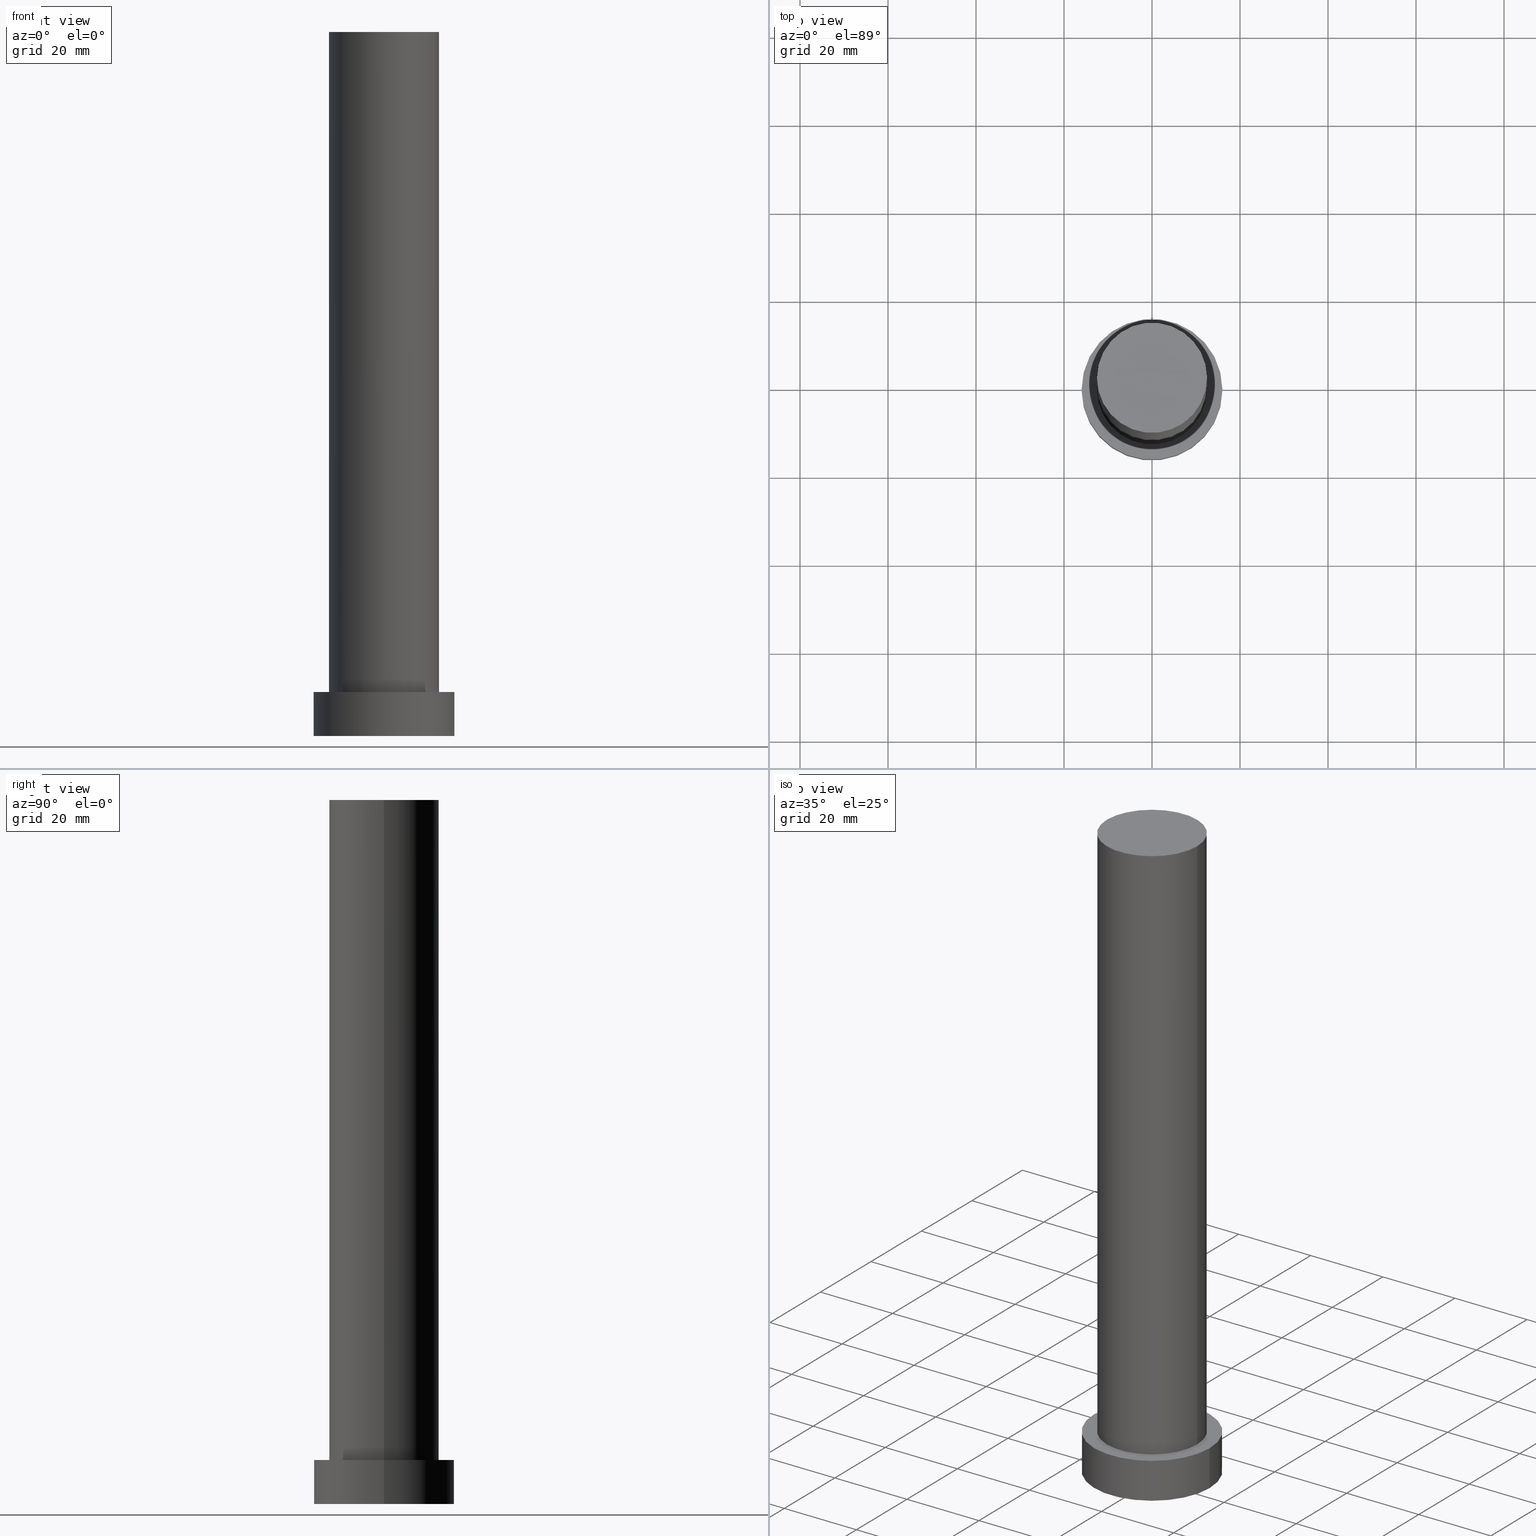
[diagram: canonical four-view strip — front | top / right | iso, engineering-drawing reading convention]
A machine part, canonical four-view strip (front | top / right | iso — engineering-drawing reading convention). The complete STEP part file that produces these views, byte-faithful:
ISO-10303-21;
HEADER;
FILE_DESCRIPTION (( 'STEP AP203' ),
    '1' );
FILE_NAME ('8864.STEP',
    '2023-02-13T07:48:14',
    ( '' ),
    ( '' ),
    'SwSTEP 2.0',
    'SolidWorks 2019',
    '' );
FILE_SCHEMA (( 'CONFIG_CONTROL_DESIGN' ));
ENDSEC;

DATA;
#1 = ADVANCED_FACE ( 'NONE', ( #175 ), #219, .T. ) ;
#2 = CALENDAR_DATE ( 2023, 13, 2 ) ;
#3 = CARTESIAN_POINT ( 'NONE',  ( -16.00000000000000000, 0.000000000000000000, 10.00000000000000000 ) ) ;
#4 = DATE_AND_TIME ( #131, #166 ) ;
#5 = DIRECTION ( 'NONE',  ( 1.000000000000000000, 0.000000000000000000, 0.000000000000000000 ) ) ;
#6 = DATE_TIME_ROLE ( 'creation_date' ) ;
#7 = SHAPE_DEFINITION_REPRESENTATION ( #210, #177 ) ;
#8 = CARTESIAN_POINT ( 'NONE',  ( -12.50000000000000000, 0.000000000000000000, 10.00000000000000000 ) ) ;
#9 = APPLICATION_PROTOCOL_DEFINITION ( 'international standard', 'config_control_design', 1994, #136 ) ;
#10 = EDGE_CURVE ( 'NONE', #165, #107, #78, .T. ) ;
#11 = LOCAL_TIME ( 8, 48, 14.00000000000000000, #50 ) ;
#12 = DIRECTION ( 'NONE',  ( -0.000000000000000000, -0.000000000000000000, -1.000000000000000000 ) ) ;
#13 = EDGE_LOOP ( 'NONE', ( #60, #142 ) ) ;
#14 = DIRECTION ( 'NONE',  ( 1.000000000000000000, 0.000000000000000000, -0.000000000000000000 ) ) ;
#15 = ORIENTED_EDGE ( 'NONE', *, *, #10, .F. ) ;
#16 = DIRECTION ( 'NONE',  ( 1.000000000000000000, 0.000000000000000000, 0.000000000000000000 ) ) ;
#17 = AXIS2_PLACEMENT_3D ( 'NONE', #120, #196, #79 ) ;
#18 = CIRCLE ( 'NONE', #55, 16.00000000000000000 ) ;
#19 =( NAMED_UNIT ( * ) SI_UNIT ( $, .STERADIAN. ) SOLID_ANGLE_UNIT ( ) );
#20 = ORIENTED_EDGE ( 'NONE', *, *, #250, .F. ) ;
#21 = APPROVAL_ROLE ( '' ) ;
#22 = LINE ( 'NONE', #64, #187 ) ;
#23 = EDGE_LOOP ( 'NONE', ( #99, #20, #197, #85 ) ) ;
#24 = APPROVAL_STATUS ( 'not_yet_approved' ) ;
#25 = EDGE_CURVE ( 'NONE', #170, #151, #18, .T. ) ;
#26 = DIRECTION ( 'NONE',  ( 1.000000000000000000, 0.000000000000000000, 0.000000000000000000 ) ) ;
#27 = DATE_TIME_ROLE ( 'classification_date' ) ;
#28 = EDGE_CURVE ( 'NONE', #81, #57, #235, .T. ) ;
#29 = CARTESIAN_POINT ( 'NONE',  ( 0.000000000000000000, 0.000000000000000000, 0.000000000000000000 ) ) ;
#30 = AXIS2_PLACEMENT_3D ( 'NONE', #217, #62, #126 ) ;
#31 = LINE ( 'NONE', #114, #61 ) ;
#32 = PERSON_AND_ORGANIZATION_ROLE ( 'design_owner' ) ;
#33 = ORIENTED_EDGE ( 'NONE', *, *, #25, .F. ) ;
#34 = CYLINDRICAL_SURFACE ( 'NONE', #115, 16.00000000000000000 ) ;
#35 = DIRECTION ( 'NONE',  ( -0.000000000000000000, -0.000000000000000000, -1.000000000000000000 ) ) ;
#36 = CARTESIAN_POINT ( 'NONE',  ( 0.000000000000000000, 0.000000000000000000, 160.0000000000000000 ) ) ;
#37 = CIRCLE ( 'NONE', #238, 16.00000000000000000 ) ;
#38 = ORIENTED_EDGE ( 'NONE', *, *, #109, .T. ) ;
#39 = DIRECTION ( 'NONE',  ( 1.000000000000000000, 0.000000000000000000, 0.000000000000000000 ) ) ;
#40 = DIRECTION ( 'NONE',  ( 0.000000000000000000, 0.000000000000000000, 1.000000000000000000 ) ) ;
#41 = ORIENTED_EDGE ( 'NONE', *, *, #207, .F. ) ;
#42 =( LENGTH_UNIT ( ) NAMED_UNIT ( * ) SI_UNIT ( .MILLI., .METRE. ) );
#43 = APPROVAL_DATE_TIME ( #173, #174 ) ;
#44 = EDGE_LOOP ( 'NONE', ( #33, #63, #76, #125 ) ) ;
#45 = PERSON_AND_ORGANIZATION_ROLE ( 'creator' ) ;
#46 = PRODUCT_DEFINITION_FORMATION_WITH_SPECIFIED_SOURCE ( 'LIBOVOLN�', '', #249, .NOT_KNOWN. ) ;
#47 = PERSON_AND_ORGANIZATION ( #195, #176 ) ;
#48 = PERSON_AND_ORGANIZATION ( #195, #176 ) ;
#49 = APPROVAL_STATUS ( 'not_yet_approved' ) ;
#50 = COORDINATED_UNIVERSAL_TIME_OFFSET ( 1, 0, .AHEAD. ) ;
#51 = APPROVAL_PERSON_ORGANIZATION ( #158, #149, #157 ) ;
#52 = PERSON_AND_ORGANIZATION ( #195, #176 ) ;
#53 = AXIS2_PLACEMENT_3D ( 'NONE', #36, #121, #14 ) ;
#54 = ORIENTED_EDGE ( 'NONE', *, *, #206, .F. ) ;
#55 = AXIS2_PLACEMENT_3D ( 'NONE', #71, #87, #155 ) ;
#56 = DIRECTION ( 'NONE',  ( 1.000000000000000000, 0.000000000000000000, 0.000000000000000000 ) ) ;
#57 = VERTEX_POINT ( 'NONE', #110 ) ;
#58 = DIRECTION ( 'NONE',  ( 1.000000000000000000, 0.000000000000000000, -0.000000000000000000 ) ) ;
#59 = DIRECTION ( 'NONE',  ( 0.000000000000000000, 0.000000000000000000, 1.000000000000000000 ) ) ;
#60 = ORIENTED_EDGE ( 'NONE', *, *, #247, .T. ) ;
#61 = VECTOR ( 'NONE', #191, 1000.000000000000000 ) ;
#62 = DIRECTION ( 'NONE',  ( 0.000000000000000000, 0.000000000000000000, 1.000000000000000000 ) ) ;
#63 = ORIENTED_EDGE ( 'NONE', *, *, #206, .T. ) ;
#64 = CARTESIAN_POINT ( 'NONE',  ( 12.50000000000000000, 1.530808498934191521E-15, 160.0000000000000000 ) ) ;
#65 = EDGE_LOOP ( 'NONE', ( #41, #251, #38, #184 ) ) ;
#66 = PLANE ( 'NONE',  #30 ) ;
#67 = CARTESIAN_POINT ( 'NONE',  ( 0.000000000000000000, 0.000000000000000000, 10.00000000000000000 ) ) ;
#68 = CARTESIAN_POINT ( 'NONE',  ( 0.000000000000000000, 0.000000000000000000, 160.0000000000000000 ) ) ;
#69 = DIRECTION ( 'NONE',  ( -1.000000000000000000, 0.000000000000000000, 0.000000000000000000 ) ) ;
#70 = COORDINATED_UNIVERSAL_TIME_OFFSET ( 1, 0, .AHEAD. ) ;
#71 = CARTESIAN_POINT ( 'NONE',  ( 0.000000000000000000, 0.000000000000000000, 10.00000000000000000 ) ) ;
#72 = APPROVAL_PERSON_ORGANIZATION ( #106, #74, #111 ) ;
#73 =( GEOMETRIC_REPRESENTATION_CONTEXT ( 3 ) GLOBAL_UNCERTAINTY_ASSIGNED_CONTEXT ( ( #108 ) ) GLOBAL_UNIT_ASSIGNED_CONTEXT ( ( #42, #104, #19 ) ) REPRESENTATION_CONTEXT ( 'NONE', 'WORKASPACE' ) );
#74 = APPROVAL ( #24, 'NEUR�EN�' ) ;
#75 = LINE ( 'NONE', #180, #135 ) ;
#76 = ORIENTED_EDGE ( 'NONE', *, *, #10, .T. ) ;
#77 = CARTESIAN_POINT ( 'NONE',  ( 0.000000000000000000, 0.000000000000000000, 10.00000000000000000 ) ) ;
#78 = CIRCLE ( 'NONE', #138, 16.00000000000000000 ) ;
#79 = DIRECTION ( 'NONE',  ( 1.000000000000000000, 0.000000000000000000, 0.000000000000000000 ) ) ;
#80 = ORIENTED_EDGE ( 'NONE', *, *, #207, .T. ) ;
#81 = VERTEX_POINT ( 'NONE', #8 ) ;
#82 = CYLINDRICAL_SURFACE ( 'NONE', #221, 12.50000000000000000 ) ;
#83 = APPROVAL_PERSON_ORGANIZATION ( #220, #174, #21 ) ;
#84 = FACE_OUTER_BOUND ( 'NONE', #44, .T. ) ;
#85 = ORIENTED_EDGE ( 'NONE', *, *, #28, .T. ) ;
#86 = VECTOR ( 'NONE', #35, 1000.000000000000000 ) ;
#87 = DIRECTION ( 'NONE',  ( 0.000000000000000000, 0.000000000000000000, 1.000000000000000000 ) ) ;
#88 = SECURITY_CLASSIFICATION ( '', '', #226 ) ;
#89 = ADVANCED_FACE ( 'NONE', ( #93 ), #34, .T. ) ;
#90 = AXIS2_PLACEMENT_3D ( 'NONE', #77, #98, #58 ) ;
#91 = PRODUCT_RELATED_PRODUCT_CATEGORY ( 'detail', '', ( #249 ) ) ;
#92 = AXIS2_PLACEMENT_3D ( 'NONE', #68, #200, #130 ) ;
#93 = FACE_OUTER_BOUND ( 'NONE', #239, .T. ) ;
#94 = CC_DESIGN_DATE_AND_TIME_ASSIGNMENT ( #4, #6, ( #233 ) ) ;
#95 = CC_DESIGN_PERSON_AND_ORGANIZATION_ASSIGNMENT ( #47, #205, ( #46 ) ) ;
#96 = CARTESIAN_POINT ( 'NONE',  ( 0.000000000000000000, 0.000000000000000000, 160.0000000000000000 ) ) ;
#97 = EDGE_CURVE ( 'NONE', #214, #81, #75, .T. ) ;
#98 = DIRECTION ( 'NONE',  ( 0.000000000000000000, 0.000000000000000000, 1.000000000000000000 ) ) ;
#99 = ORIENTED_EDGE ( 'NONE', *, *, #185, .F. ) ;
#100 = CARTESIAN_POINT ( 'NONE',  ( -16.00000000000000000, 0.000000000000000000, 0.000000000000000000 ) ) ;
#101 = LINE ( 'NONE', #254, #86 ) ;
#102 = ORIENTED_EDGE ( 'NONE', *, *, #159, .T. ) ;
#103 = CARTESIAN_POINT ( 'NONE',  ( 16.00000000000000000, 1.959434878635765131E-15, 10.00000000000000000 ) ) ;
#104 =( NAMED_UNIT ( * ) PLANE_ANGLE_UNIT ( ) SI_UNIT ( $, .RADIAN. ) );
#105 = APPLICATION_PROTOCOL_DEFINITION ( 'international standard', 'config_control_design', 1994, #227 ) ;
#106 = PERSON_AND_ORGANIZATION ( #195, #176 ) ;
#107 = VERTEX_POINT ( 'NONE', #100 ) ;
#108 = UNCERTAINTY_MEASURE_WITH_UNIT (LENGTH_MEASURE( 1.000000000000000082E-05 ), #42, 'distance_accuracy_value', 'NONE');
#109 = EDGE_CURVE ( 'NONE', #57, #81, #211, .T. ) ;
#110 = CARTESIAN_POINT ( 'NONE',  ( 12.50000000000000000, 1.530808498934191521E-15, 10.00000000000000000 ) ) ;
#111 = APPROVAL_ROLE ( '' ) ;
#112 = CC_DESIGN_DATE_AND_TIME_ASSIGNMENT ( #245, #27, ( #88 ) ) ;
#113 = CC_DESIGN_APPROVAL ( #174, ( #46 ) ) ;
#114 = CARTESIAN_POINT ( 'NONE',  ( 16.00000000000000000, 1.959434878635765131E-15, 10.00000000000000000 ) ) ;
#115 = AXIS2_PLACEMENT_3D ( 'NONE', #141, #12, #234 ) ;
#116 = DIRECTION ( 'NONE',  ( -0.000000000000000000, -0.000000000000000000, -1.000000000000000000 ) ) ;
#117 = CIRCLE ( 'NONE', #188, 12.50000000000000000 ) ;
#118 = FACE_BOUND ( 'NONE', #223, .T. ) ;
#119 = CARTESIAN_POINT ( 'NONE',  ( -12.50000000000000000, 0.000000000000000000, 160.0000000000000000 ) ) ;
#120 = CARTESIAN_POINT ( 'NONE',  ( 0.000000000000000000, 0.000000000000000000, 0.000000000000000000 ) ) ;
#121 = DIRECTION ( 'NONE',  ( 0.000000000000000000, 0.000000000000000000, 1.000000000000000000 ) ) ;
#122 = VERTEX_POINT ( 'NONE', #129 ) ;
#123 = CC_DESIGN_PERSON_AND_ORGANIZATION_ASSIGNMENT ( #199, #156, ( #46 ) ) ;
#124 = CC_DESIGN_PERSON_AND_ORGANIZATION_ASSIGNMENT ( #133, #203, ( #88 ) ) ;
#125 = ORIENTED_EDGE ( 'NONE', *, *, #139, .F. ) ;
#126 = DIRECTION ( 'NONE',  ( 1.000000000000000000, 0.000000000000000000, -0.000000000000000000 ) ) ;
#127 = CIRCLE ( 'NONE', #17, 16.00000000000000000 ) ;
#128 = COORDINATED_UNIVERSAL_TIME_OFFSET ( 1, 0, .AHEAD. ) ;
#129 = CARTESIAN_POINT ( 'NONE',  ( 12.50000000000000000, 1.530808498934191521E-15, 160.0000000000000000 ) ) ;
#130 = DIRECTION ( 'NONE',  ( -1.000000000000000000, 0.000000000000000000, 0.000000000000000000 ) ) ;
#131 = CALENDAR_DATE ( 2023, 13, 2 ) ;
#132 = DIRECTION ( 'NONE',  ( -0.000000000000000000, -0.000000000000000000, -1.000000000000000000 ) ) ;
#133 = PERSON_AND_ORGANIZATION ( #195, #176 ) ;
#134 = AXIS2_PLACEMENT_3D ( 'NONE', #29, #228, #178 ) ;
#135 = VECTOR ( 'NONE', #160, 1000.000000000000000 ) ;
#136 = APPLICATION_CONTEXT ( 'configuration controlled 3d designs of mechanical parts and assemblies' ) ;
#137 = MECHANICAL_CONTEXT ( 'NONE', #227, 'mechanical' ) ;
#138 = AXIS2_PLACEMENT_3D ( 'NONE', #186, #246, #5 ) ;
#139 = EDGE_CURVE ( 'NONE', #151, #107, #101, .T. ) ;
#140 = AXIS2_PLACEMENT_3D ( 'NONE', #232, #59, #56 ) ;
#141 = CARTESIAN_POINT ( 'NONE',  ( 0.000000000000000000, 0.000000000000000000, 10.00000000000000000 ) ) ;
#142 = ORIENTED_EDGE ( 'NONE', *, *, #25, .T. ) ;
#143 = FACE_OUTER_BOUND ( 'NONE', #241, .T. ) ;
#144 = CC_DESIGN_PERSON_AND_ORGANIZATION_ASSIGNMENT ( #52, #45, ( #233 ) ) ;
#145 = CC_DESIGN_APPROVAL ( #149, ( #233 ) ) ;
#146 = ORIENTED_EDGE ( 'NONE', *, *, #159, .F. ) ;
#147 = CARTESIAN_POINT ( 'NONE',  ( 0.000000000000000000, 0.000000000000000000, 160.0000000000000000 ) ) ;
#148 = DIRECTION ( 'NONE',  ( -0.000000000000000000, -0.000000000000000000, -1.000000000000000000 ) ) ;
#149 = APPROVAL ( #208, 'NEUR�EN�' ) ;
#150 = CC_DESIGN_SECURITY_CLASSIFICATION ( #88, ( #46 ) ) ;
#151 = VERTEX_POINT ( 'NONE', #3 ) ;
#152 = CALENDAR_DATE ( 2023, 13, 2 ) ;
#153 = CLOSED_SHELL ( 'NONE', ( #1, #179, #89, #216, #218, #252, #167 ) ) ;
#154 = CALENDAR_DATE ( 2023, 13, 2 ) ;
#155 = DIRECTION ( 'NONE',  ( 1.000000000000000000, 0.000000000000000000, 0.000000000000000000 ) ) ;
#156 = PERSON_AND_ORGANIZATION_ROLE ( 'creator' ) ;
#157 = APPROVAL_ROLE ( '' ) ;
#158 = PERSON_AND_ORGANIZATION ( #195, #176 ) ;
#159 = EDGE_CURVE ( 'NONE', #107, #165, #127, .T. ) ;
#160 = DIRECTION ( 'NONE',  ( -0.000000000000000000, -0.000000000000000000, -1.000000000000000000 ) ) ;
#161 = ORIENTED_EDGE ( 'NONE', *, *, #250, .T. ) ;
#162 = LOCAL_TIME ( 8, 48, 14.00000000000000000, #225 ) ;
#163 = AXIS2_PLACEMENT_3D ( 'NONE', #171, #224, #26 ) ;
#164 = CARTESIAN_POINT ( 'NONE',  ( 16.00000000000000000, 1.959434878635765131E-15, 0.000000000000000000 ) ) ;
#165 = VERTEX_POINT ( 'NONE', #164 ) ;
#166 = LOCAL_TIME ( 8, 48, 14.00000000000000000, #70 ) ;
#167 = ADVANCED_FACE ( 'NONE', ( #143 ), #213, .T. ) ;
#168 = ORIENTED_EDGE ( 'NONE', *, *, #28, .F. ) ;
#169 = CYLINDRICAL_SURFACE ( 'NONE', #198, 16.00000000000000000 ) ;
#170 = VERTEX_POINT ( 'NONE', #103 ) ;
#171 = CARTESIAN_POINT ( 'NONE',  ( 0.000000000000000000, 0.000000000000000000, 10.00000000000000000 ) ) ;
#172 = FACE_OUTER_BOUND ( 'NONE', #23, .T. ) ;
#173 = DATE_AND_TIME ( #154, #162 ) ;
#174 = APPROVAL ( #49, 'NEUR�EN�' ) ;
#175 = FACE_OUTER_BOUND ( 'NONE', #65, .T. ) ;
#176 = ORGANIZATION ( 'NEUR�EN�', 'NEUR�EN�', '' ) ;
#177 = ADVANCED_BREP_SHAPE_REPRESENTATION ( '8864', ( #190, #134 ), #73 ) ;
#178 = DIRECTION ( 'NONE',  ( 1.000000000000000000, 0.000000000000000000, 0.000000000000000000 ) ) ;
#179 = ADVANCED_FACE ( 'NONE', ( #84 ), #169, .T. ) ;
#180 = CARTESIAN_POINT ( 'NONE',  ( -12.50000000000000000, 0.000000000000000000, 160.0000000000000000 ) ) ;
#181 = CARTESIAN_POINT ( 'NONE',  ( 0.000000000000000000, 0.000000000000000000, 10.00000000000000000 ) ) ;
#182 = CIRCLE ( 'NONE', #204, 12.50000000000000000 ) ;
#183 = COORDINATED_UNIVERSAL_TIME_OFFSET ( 1, 0, .AHEAD. ) ;
#184 = ORIENTED_EDGE ( 'NONE', *, *, #97, .F. ) ;
#185 = EDGE_CURVE ( 'NONE', #122, #57, #22, .T. ) ;
#186 = CARTESIAN_POINT ( 'NONE',  ( 0.000000000000000000, 0.000000000000000000, 0.000000000000000000 ) ) ;
#187 = VECTOR ( 'NONE', #116, 1000.000000000000000 ) ;
#188 = AXIS2_PLACEMENT_3D ( 'NONE', #147, #40, #16 ) ;
#189 = APPROVAL_DATE_TIME ( #243, #74 ) ;
#190 = MANIFOLD_SOLID_BREP ( 'P�idat vysunut�m3', #153 ) ;
#191 = DIRECTION ( 'NONE',  ( -0.000000000000000000, -0.000000000000000000, -1.000000000000000000 ) ) ;
#192 = PLANE ( 'NONE',  #90 ) ;
#193 = EDGE_LOOP ( 'NONE', ( #146, #15 ) ) ;
#194 = FACE_OUTER_BOUND ( 'NONE', #13, .T. ) ;
#195 = PERSON ( 'NEUR�EN�', 'NEUR�EN�', 'NEUR�EN�', ('NEUR�EN�'), ('NEUR�EN�'), ('NEUR�EN�') ) ;
#196 = DIRECTION ( 'NONE',  ( 0.000000000000000000, 0.000000000000000000, 1.000000000000000000 ) ) ;
#197 = ORIENTED_EDGE ( 'NONE', *, *, #97, .T. ) ;
#198 = AXIS2_PLACEMENT_3D ( 'NONE', #67, #148, #222 ) ;
#199 = PERSON_AND_ORGANIZATION ( #195, #176 ) ;
#200 = DIRECTION ( 'NONE',  ( -0.000000000000000000, -0.000000000000000000, -1.000000000000000000 ) ) ;
#201 = ORIENTED_EDGE ( 'NONE', *, *, #247, .F. ) ;
#202 = DIRECTION ( 'NONE',  ( 0.000000000000000000, 0.000000000000000000, 1.000000000000000000 ) ) ;
#203 = PERSON_AND_ORGANIZATION_ROLE ( 'classification_officer' ) ;
#204 = AXIS2_PLACEMENT_3D ( 'NONE', #96, #231, #39 ) ;
#205 = PERSON_AND_ORGANIZATION_ROLE ( 'design_supplier' ) ;
#206 = EDGE_CURVE ( 'NONE', #170, #165, #31, .T. ) ;
#207 = EDGE_CURVE ( 'NONE', #122, #214, #182, .T. ) ;
#208 = APPROVAL_STATUS ( 'not_yet_approved' ) ;
#209 = APPROVAL_DATE_TIME ( #230, #149 ) ;
#210 = PRODUCT_DEFINITION_SHAPE ( 'NONE', 'NONE',  #233 ) ;
#211 = CIRCLE ( 'NONE', #140, 12.50000000000000000 ) ;
#212 = ORIENTED_EDGE ( 'NONE', *, *, #109, .F. ) ;
#213 = PLANE ( 'NONE',  #53 ) ;
#214 = VERTEX_POINT ( 'NONE', #119 ) ;
#215 = LOCAL_TIME ( 8, 48, 14.00000000000000000, #128 ) ;
#216 = ADVANCED_FACE ( 'NONE', ( #118, #194 ), #192, .T. ) ;
#217 = CARTESIAN_POINT ( 'NONE',  ( 0.000000000000000000, 0.000000000000000000, 0.000000000000000000 ) ) ;
#218 = ADVANCED_FACE ( 'NONE', ( #255 ), #66, .F. ) ;
#219 = CYLINDRICAL_SURFACE ( 'NONE', #92, 12.50000000000000000 ) ;
#220 = PERSON_AND_ORGANIZATION ( #195, #176 ) ;
#221 = AXIS2_PLACEMENT_3D ( 'NONE', #244, #132, #69 ) ;
#222 = DIRECTION ( 'NONE',  ( -1.000000000000000000, 0.000000000000000000, 0.000000000000000000 ) ) ;
#223 = EDGE_LOOP ( 'NONE', ( #168, #212 ) ) ;
#224 = DIRECTION ( 'NONE',  ( 0.000000000000000000, 0.000000000000000000, 1.000000000000000000 ) ) ;
#225 = COORDINATED_UNIVERSAL_TIME_OFFSET ( 1, 0, .AHEAD. ) ;
#226 = SECURITY_CLASSIFICATION_LEVEL ( 'unclassified' ) ;
#227 = APPLICATION_CONTEXT ( 'configuration controlled 3d designs of mechanical parts and assemblies' ) ;
#228 = DIRECTION ( 'NONE',  ( 0.000000000000000000, 0.000000000000000000, 1.000000000000000000 ) ) ;
#229 = CALENDAR_DATE ( 2023, 13, 2 ) ;
#230 = DATE_AND_TIME ( #229, #11 ) ;
#231 = DIRECTION ( 'NONE',  ( 0.000000000000000000, 0.000000000000000000, 1.000000000000000000 ) ) ;
#232 = CARTESIAN_POINT ( 'NONE',  ( 0.000000000000000000, 0.000000000000000000, 10.00000000000000000 ) ) ;
#233 = PRODUCT_DEFINITION ( 'NEZN�M�', '', #46, #242 ) ;
#234 = DIRECTION ( 'NONE',  ( -1.000000000000000000, 0.000000000000000000, 0.000000000000000000 ) ) ;
#235 = CIRCLE ( 'NONE', #163, 12.50000000000000000 ) ;
#236 = ORIENTED_EDGE ( 'NONE', *, *, #139, .T. ) ;
#237 = CC_DESIGN_PERSON_AND_ORGANIZATION_ASSIGNMENT ( #48, #32, ( #249 ) ) ;
#238 = AXIS2_PLACEMENT_3D ( 'NONE', #181, #202, #240 ) ;
#239 = EDGE_LOOP ( 'NONE', ( #54, #201, #236, #102 ) ) ;
#240 = DIRECTION ( 'NONE',  ( 1.000000000000000000, 0.000000000000000000, 0.000000000000000000 ) ) ;
#241 = EDGE_LOOP ( 'NONE', ( #161, #80 ) ) ;
#242 = DESIGN_CONTEXT ( 'detailed design', #136, 'design' ) ;
#243 = DATE_AND_TIME ( #2, #248 ) ;
#244 = CARTESIAN_POINT ( 'NONE',  ( 0.000000000000000000, 0.000000000000000000, 160.0000000000000000 ) ) ;
#245 = DATE_AND_TIME ( #152, #215 ) ;
#246 = DIRECTION ( 'NONE',  ( 0.000000000000000000, 0.000000000000000000, 1.000000000000000000 ) ) ;
#247 = EDGE_CURVE ( 'NONE', #151, #170, #37, .T. ) ;
#248 = LOCAL_TIME ( 8, 48, 14.00000000000000000, #183 ) ;
#249 = PRODUCT ( '8864', '8864', '', ( #137 ) ) ;
#250 = EDGE_CURVE ( 'NONE', #214, #122, #117, .T. ) ;
#251 = ORIENTED_EDGE ( 'NONE', *, *, #185, .T. ) ;
#252 = ADVANCED_FACE ( 'NONE', ( #172 ), #82, .T. ) ;
#253 = CC_DESIGN_APPROVAL ( #74, ( #88 ) ) ;
#254 = CARTESIAN_POINT ( 'NONE',  ( -16.00000000000000000, 0.000000000000000000, 10.00000000000000000 ) ) ;
#255 = FACE_OUTER_BOUND ( 'NONE', #193, .T. ) ;
ENDSEC;
END-ISO-10303-21;
